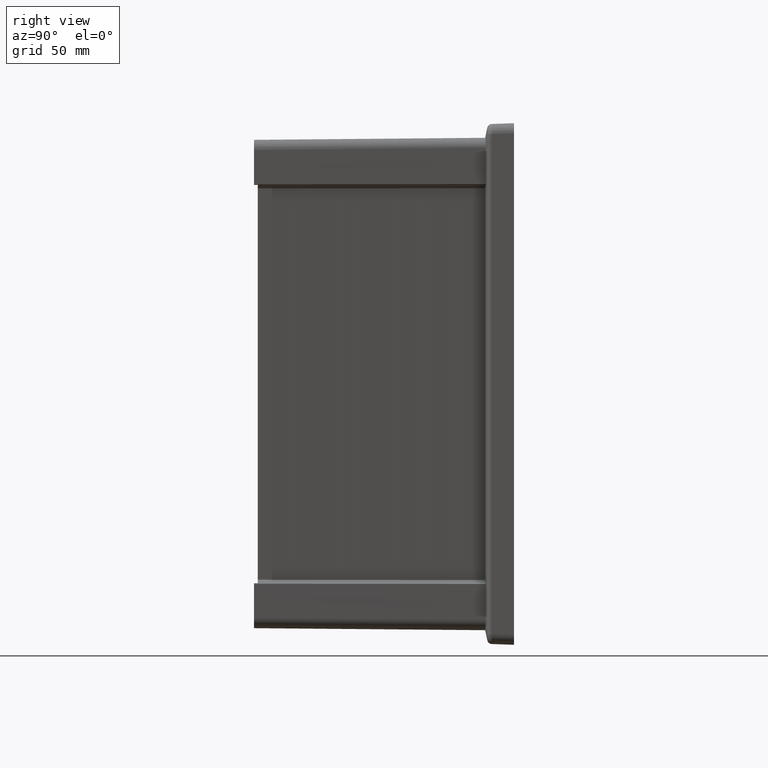
[diagram: clean part render]
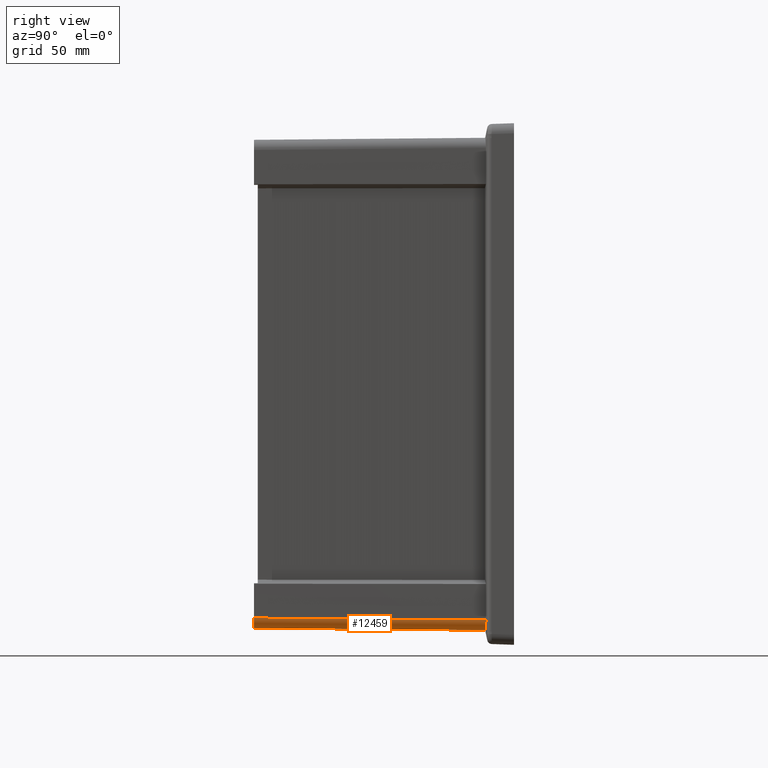
[diagram: same view with one face highlighted and labeled with its STEP entity id]
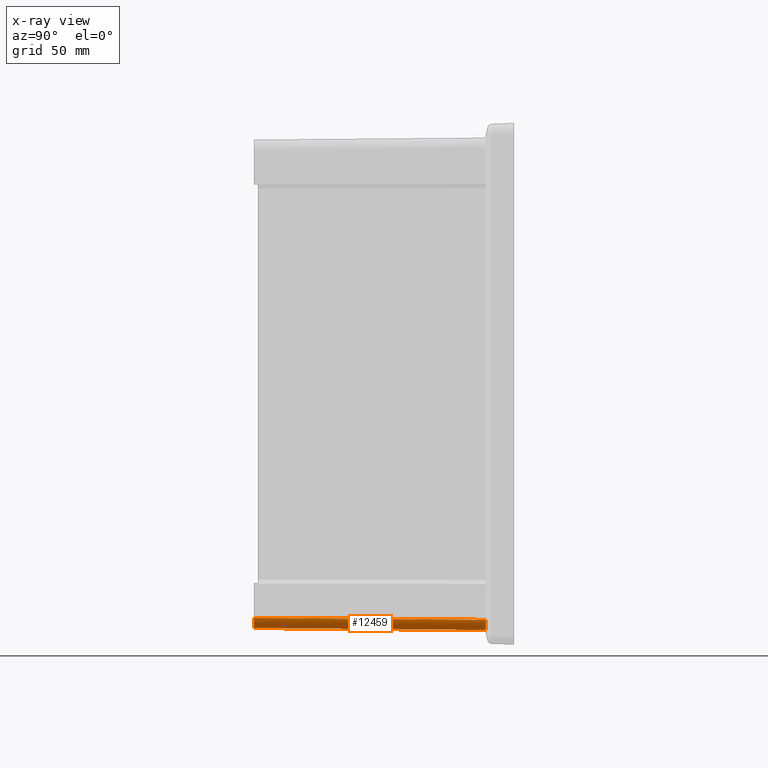
[diagram: x-ray of the same camera — body ghosted, the highlighted face saturated]
A machine part, right view. The second image highlights one B-rep face of the part: STEP entity #12459.
The next image is the same camera in x-ray: the body ghosted, the highlighted face saturated — about 0% of this face is hidden behind the body in this view.
In plain terms, the highlighted cylindrical surface (edge-blend (fillet) strip) has radius 5.5 mm, axis along (0.0087, 0.9999, -0.0087).
Its self-contained STEP definition (entity closure, byte-faithful):
#2405=CARTESIAN_POINT('',(1.015073698854E2,-1.405E2,-1.320071604515E2));
#2406=CARTESIAN_POINT('',(1.024240016446E2,-1.405E2,-1.320071604497E2));
#2407=CARTESIAN_POINT('',(1.038594064088E2,-1.405E2,-1.316093016919E2));
#2408=CARTESIAN_POINT('',(1.054773247122E2,-1.405E2,-1.304773247122E2));
#2409=CARTESIAN_POINT('',(1.066093016919E2,-1.405E2,-1.288594064088E2));
#2410=CARTESIAN_POINT('',(1.070071604497E2,-1.405E2,-1.274240016446E2));
#2411=CARTESIAN_POINT('',(1.070071604515E2,-1.405E2,-1.265073698854E2));
#2470=DIRECTION('',(8.726203236472E-3,9.999238504760E-1,-8.726203429091E-3));
#2471=VECTOR('',#2470,1.253596075292E2);
#2472=CARTESIAN_POINT('',(1.070071604519E2,-1.404999999895E2,
-1.265073698774E2));
#2473=LINE('',#2472,#2471);
#2493=CARTESIAN_POINT('',(1.081010738649E2,-1.514993853475E1,
-1.276012833145E2));
#2494=CARTESIAN_POINT('',(1.081010738649E2,-1.514993853474E1,
-1.277957366328E2));
#2495=CARTESIAN_POINT('',(1.080805879966E2,-1.515429291198E1,
-1.281821131819E2));
#2496=CARTESIAN_POINT('',(1.079882201299E2,-1.517392631878E1,
-1.287583737385E2));
#2497=CARTESIAN_POINT('',(1.078869099201E2,-1.519546046877E1,
-1.291317720865E2));
#2498=CARTESIAN_POINT('',(1.078261217597E2,-1.520838139114E1,
-1.293164619326E2));
#3319=CARTESIAN_POINT('',(1.025979121171E2,-1.553623605655E1,
-1.330977027018E2));
#3320=CARTESIAN_POINT('',(1.028913092061E2,-1.552471461101E1,
-1.330978032480E2));
#3321=CARTESIAN_POINT('',(1.034857593815E2,-1.550457453955E1,
-1.330487551809E2));
#3322=CARTESIAN_POINT('',(1.043244101135E2,-1.547858964845E1,
-1.328465865422E2));
#3323=CARTESIAN_POINT('',(1.052454980008E2,-1.544612499611E1,
-1.324598188774E2));
#3324=CARTESIAN_POINT('',(1.061958466818E2,-1.539795617027E1,
-1.318167087751E2));
#3325=CARTESIAN_POINT('',(1.069999405137E2,-1.533199396987E1,
-1.309583819039E2));
#3326=CARTESIAN_POINT('',(1.075160693239E2,-1.526693719951E1,
-1.301225268867E2));
#3327=CARTESIAN_POINT('',(1.077406208927E2,-1.522655516143E1,
-1.295762352480E2));
#3328=CARTESIAN_POINT('',(1.078261217597E2,-1.520838139114E1,
-1.293164619326E2));
#3346=DIRECTION('',(-8.726203199730E-3,-9.999238504777E-1,8.726203270744E-3));
#3347=VECTOR('',#3346,1.249732805886E2);
#3348=CARTESIAN_POINT('',(1.025979121171E2,-1.553623605655E1,
-1.330977027018E2));
#3349=LINE('',#3348,#3347);
#6753=CARTESIAN_POINT('',(1.070071604519E2,-1.404999999895E2,
-1.265073698774E2));
#6754=VERTEX_POINT('',#6753);
#6755=VERTEX_POINT('',#2405);
#7491=CARTESIAN_POINT('',(1.078261217597E2,-1.520838139114E1,
-1.293164619326E2));
#7492=VERTEX_POINT('',#7491);
#7493=VERTEX_POINT('',#2493);
#7514=CARTESIAN_POINT('',(1.025979121171E2,-1.553623605655E1,
-1.330977027018E2));
#7515=VERTEX_POINT('',#7514);
#12446=CARTESIAN_POINT('',(1.015008063447E2,-1.412041100882E2,
-1.265008063447E2));
#12447=DIRECTION('',(8.726203243996E-3,9.999238504776E-1,-8.726203243996E-3));
#12448=DIRECTION('',(3.633713102935E-11,8.726535498109E-3,9.999619230642E-1));
#12449=AXIS2_PLACEMENT_3D('',#12446,#12447,#12448);
#12450=CYLINDRICAL_SURFACE('',#12449,5.500000000076E0);
#12451=ORIENTED_EDGE('',*,*,#11376,.T.);
#12452=ORIENTED_EDGE('',*,*,#11436,.T.);
#12453=ORIENTED_EDGE('',*,*,#11470,.T.);
#12454=ORIENTED_EDGE('',*,*,#11055,.F.);
#12456=ORIENTED_EDGE('',*,*,#12455,.T.);
#12457=EDGE_LOOP('',(#12451,#12452,#12453,#12454,#12456));
#12458=FACE_OUTER_BOUND('',#12457,.F.);
#12459=ADVANCED_FACE('',(#12458),#12450,.T.);
#2412=B_SPLINE_CURVE_WITH_KNOTS('',3,(#2405,#2406,#2407,#2408,#2409,#2410,
#2411),.UNSPECIFIED.,.F.,.F.,(4,1,1,1,4),(0.E0,2.5E-1,5.E-1,7.5E-1,1.E0),
.UNSPECIFIED.);
#2499=B_SPLINE_CURVE_WITH_KNOTS('',3,(#2493,#2494,#2495,#2496,#2497,#2498),
.UNSPECIFIED.,.F.,.F.,(4,1,1,4),(0.E0,3.333333333333E-1,6.666666666667E-1,1.E0),
.UNSPECIFIED.);
#3329=B_SPLINE_CURVE_WITH_KNOTS('',3,(#3319,#3320,#3321,#3322,#3323,#3324,#3325,
#3326,#3327,#3328),.UNSPECIFIED.,.F.,.F.,(4,1,1,1,1,1,1,4),(0.E0,
1.428571428571E-1,2.857142857143E-1,4.285714285714E-1,5.714285714286E-1,
7.142857142857E-1,8.571428571429E-1,1.E0),.UNSPECIFIED.);
#11055=EDGE_CURVE('',#7515,#7492,#3329,.T.);
#11376=EDGE_CURVE('',#6755,#6754,#2412,.T.);
#11436=EDGE_CURVE('',#6754,#7493,#2473,.T.);
#11470=EDGE_CURVE('',#7493,#7492,#2499,.T.);
#12455=EDGE_CURVE('',#7515,#6755,#3349,.T.);